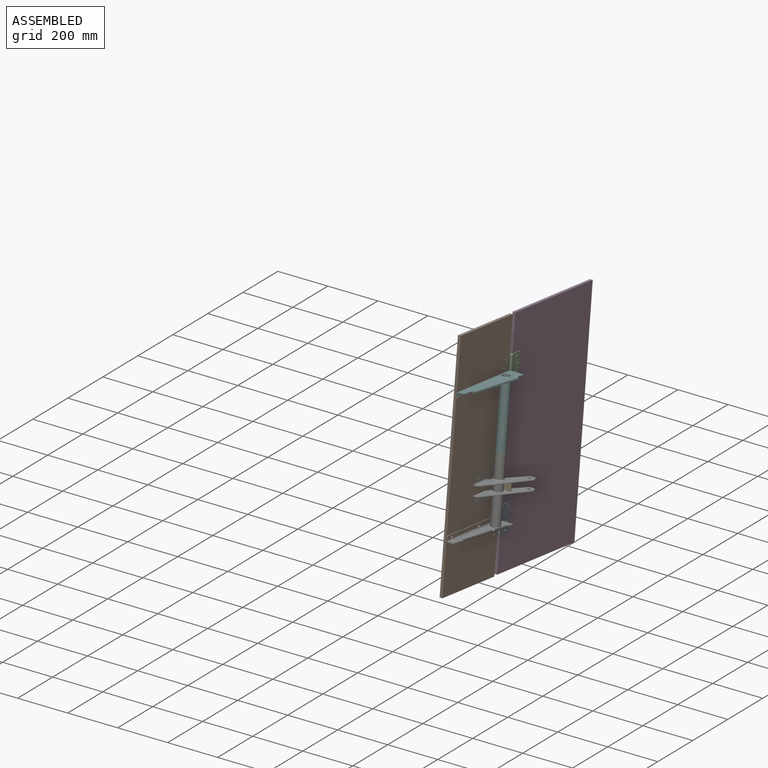
[diagram: assembled view]
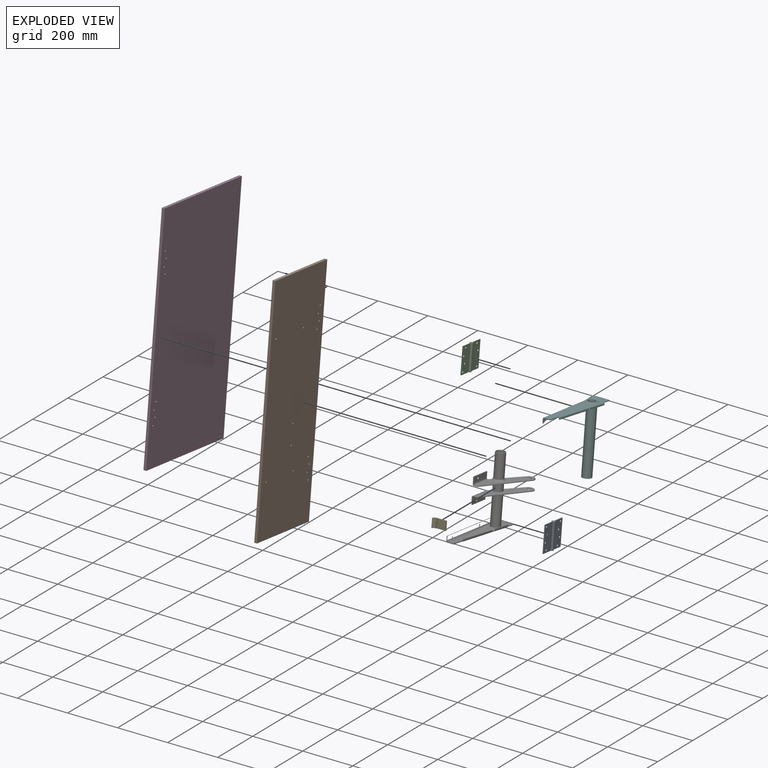
[diagram: exploded view]
GUIDED TOUR — MATED ASSEMBLY WITH SUBASSEMBLIES (Onshape document 43f97b9f7a8c3bc5046a47ca, AutoMate assembly 43f97b9f7a8c3bc5046a47ca_c467d1820c0d632e73bb7d85_4839b0d3525e1f33f01944b1_default)

This assembly has 11 component occurrences arranged in 7 top-level units: 5 individual components plus 2 subassemblies (S0, S1). The tour has two levels: first the top level, where each subassembly is treated as one rigid unit; then each subassembly is toured internally in its own section (nesting deeper than one subassembly level is flattened into its subassembly's section).

Components are labeled P0..P10 across the whole record; subassembly units are labeled S0..S1. A mate is a constraint between two units; its type names the relative motion it leaves free:
  CYLINDRICAL — leaves both rotation about and translation along the listed axis free,
  PARALLEL — keeps the two listed directions parallel.
Axis/direction vectors are unit vectors and 'through' points are millimeter coordinates, both in the assembly's world frame.

TOP-LEVEL MATES (between units; each subassembly's internal mates are listed in its own section)
  1. CYLINDRICAL "Cylindrical 9": P7 <-> S1, axis (-1.000, 0.000, 0.000) through (-171.86, -400.85, 621.26) mm
  2. CYLINDRICAL "Cylindrical 1": S0 <-> P3, axis (-1.000, 0.000, 0.000) through (-174.66, -400.32, 63.24) mm
  3. CYLINDRICAL "Cylindrical 3": S1 <-> P3, axis (-1.000, 0.000, 0.000) through (-174.66, -331.63, 585.66) mm
  4. CYLINDRICAL "Cylindrical 11": P10 <-> S0, axis (-1.000, 0.000, 0.000) through (-171.86, -458.17, 125.63) mm
  5. CYLINDRICAL "Cylindrical 2": S0 <-> P3, axis (-1.000, 0.000, 0.000) through (-174.66, -382.64, 144.48) mm
  6. CYLINDRICAL "Cylindrical 12": P7 <-> P10, axis (0.000, -0.115, -0.993) through (-143.29, -464.18, 377.68) mm
  7. CYLINDRICAL "Cylindrical 8": S0 <-> P1, axis (-1.000, 0.000, 0.000) through (-174.66, -463.20, 153.75) mm
  8. CYLINDRICAL "Cylindrical 5": S1 <-> P1, axis (-1.000, 0.000, 0.000) through (-174.66, -394.49, 676.27) mm
  9. CYLINDRICAL "Cylindrical 6": P1 <-> S1, axis (1.000, 0.000, 0.000) through (-171.86, -412.17, 595.03) mm
  10. CYLINDRICAL "Cylindrical 4": P3 <-> S1, axis (1.000, 0.000, 0.000) through (-174.66, -330.30, 668.80) mm
  11. CYLINDRICAL "Cylindrical 7": S0 <-> P1, axis (-1.000, 0.000, 0.000) through (-174.66, -464.53, 70.61) mm
  12. CYLINDRICAL "Cylindrical 10": P7 <-> P1, axis (-1.000, 0.000, 0.000) through (-171.87, -646.86, 649.70) mm
  13. PARALLEL "Parallel 1": P10 <-> P5, direction (0.000, 0.115, 0.993) through (-120.14, -474.88, 242.62) mm

TOP-LEVEL ASSEMBLY ORDER
  1. P10 — the base component [order verified]
  2. P5 [order verified]
  3. S0 [order verified]
  4. P7 [order verified]
  5. S1 [order verified]
  6. P1 [order verified]
  7. P3 [order verified]
Order-tag legend:
  [order verified] — this step's position reverses a verified removal order: the component was checked to insert without passing through the ones already placed.

Of the 11 component occurrences, 6 carry the full construction recipe — the FeatureScript program that regenerates the part's solid from scratch; the rest are supplied as boundary geometry only. Each toured unit is shown spotlighted twice — assembled, then exploded with a leader line back to its socket (green = recipe-attached component, orange = geometry-only, blue = subassembly unit; the rest desaturated gray).
NOTE — document 2 of 2 of this assembly tour. The two overview renders and the header above are repeated from document 1; the component sections below continue where the previous document stopped.
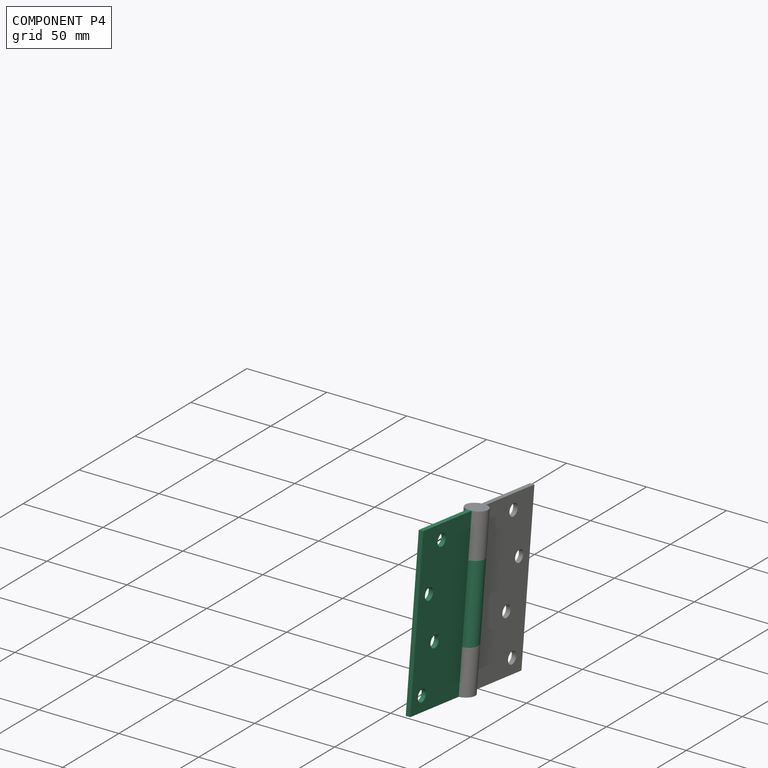
[diagram: component P4 — assembled]
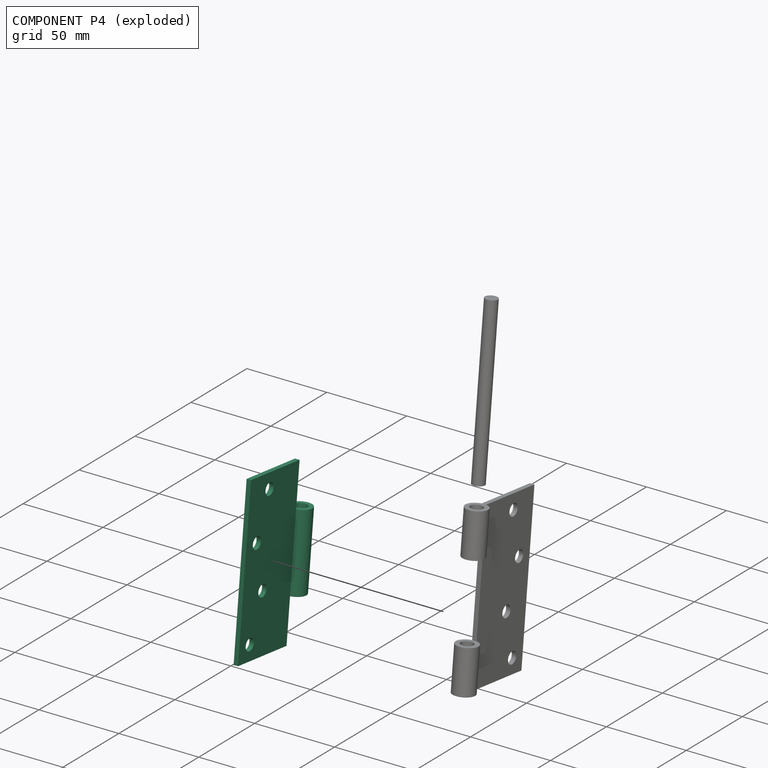
[diagram: component P4 — exploded]
COMPONENT P4 — recipe-attached (CADFS 00647141, mesh-verified: the recipe's output STEP matches this component's geometry to below the mesh-comparison resolution (tessellation chordal tolerance ~0.175 mm)).
Held by: CYLINDRICAL mate "Cylindrical 1" to P8; PARALLEL mate "Parallel 2" to P8.
Construction recipe (FeatureScript — the CAD program that rebuilds this solid; sketch coordinates are in the units given by the * unit suffixes, e.g. mm):

FeatureScript 1511;
import(path : "onshape/std/geometry.fs", version : "1511.0");
import(path : "onshape/std/common.fs", version : "1511.0");
const mm = millimeter;
const VERTEX = EntityType.VERTEX;
const EDGE = EntityType.EDGE;
const FACE = EntityType.FACE;
const BODY = EntityType.BODY;
function v(x, y){return vector(x, y);}
function OD(order){return orderDisambiguation(order);}
function OSD(set){return originalSetDisambiguation(set);}
function TD(topology){return topologyDisambiguation(topology);}
function TDD(query){return trueDependencyDisambiguation(query);}
function sQuery(a, b, c) {return sketchEntityQuery(a, b, c);}

annotation { "Feature Type Name" : "Feature", "Feature Type Description" : "" }
export const myFeature = defineFeature(function(context is Context, id is Id, definition is map)
    precondition{}
    {
        {
            var Q0;
            Q0=qCreatedBy(makeId("Top.planeOp"),FACE);
            var sketch = newSketch(context, id + "F0", { "sketchPlane" : qUnion([Q0])});
            skLineSegment(sketch, "E0.bottom", {"start": v(-50.7, 21.8) * mm, "end": v(50.71, 21.8) * mm});
            skLineSegment(sketch, "E0.top", {"start": v(-50.7, -21.8) * mm, "end": v(50.71, -21.8) * mm});
            skLineSegment(sketch, "E0.left", {"start": v(-50.7, 21.8) * mm, "end": v(-50.7, -21.8) * mm});
            skLineSegment(sketch, "E0.right", {"start": v(50.71, 21.8) * mm, "end": v(50.71, -21.8) * mm});
            skSolve(sketch);
        }
        {
            var Q0;
            Q0 = qSketchRegion(id + "F0", true);
            extrude(context, id + "F1", {"entities" : qUnion([Q0]), "depth" : 2.8 * mm, "offsetDistance" : 25.4 * mm});
        }
        {
            var Q0;
            Q0=qCreatedBy(makeId("Right.planeOp"),FACE);
            var sketch = newSketch(context, id + "F2", { "sketchPlane" : qUnion([Q0])});
            skCircle(sketch, "E1", {"center": v(-28.3, 1.4) * mm, "radius": 6.65 * mm});
            skPoint(sketch, "E2", {"position": v(-21.8, 1.4) * mm});
            skCircle(sketch, "E3.0", {"center": v(-28.3, 1.4) * mm, "radius": 3.86 * mm});
            skSolve(sketch);
        }
        {
            var Q0;
            Q0 = qSketchRegion(id + "F2", true);
            extrude(context, id + "F3", {"entities" : qUnion([Q0]), "operationType" : NewBodyOperationType.ADD, "depth" : 23.72 * mm, "offsetDistance" : 25.4 * mm, "hasSecondDirection" : true, "secondDirectionOppositeDirection" : true, "secondDirectionDepth" : 23.72 * mm});
        }
        {
            var Q0;
            Q0=makeQuery(id+"F1.opExtrude","CAP_FACE",FACE,{"disambiguationData":[OSD([sQuery(id+"F0.wireOp",EDGE,"E0.bottom"),sQuery(id+"F0.wireOp",EDGE,"E0.top"),sQuery(id+"F0.wireOp",EDGE,"E0.left"),sQuery(id+"F0.wireOp",EDGE,"E0.right")])],"isStart":false});
            var sketch = newSketch(context, id + "F4", { "sketchPlane" : qUnion([Q0])});
            skPoint(sketch, "E4", {"position": v(41.38, 12.34) * mm});
            skPoint(sketch, "E5", {"position": v(-14, 12.34) * mm});
            skPoint(sketch, "E6", {"position": v(14.02, 4.1) * mm});
            skPoint(sketch, "E7", {"position": v(-41.36, 4.1) * mm});
            skSolve(sketch);
        }
        {
            var Q0;
            Q0=sQuery(id+"F4.wireOp",VERTEX,"E6");
            var Q1;
            Q1=sQuery(id+"F4.wireOp",VERTEX,"E5");
            var Q2;
            Q2=sQuery(id+"F4.wireOp",VERTEX,"E7");
            var Q3;
            Q3=sQuery(id+"F4.wireOp",VERTEX,"E4");
            var Q4;
            Q4=makeQuery(id+"F1.opExtrude","SWEPT_BODY",BODY,{"disambiguationData":[OSD([sQuery(id+"F0.wireOp",EDGE,"E0.bottom"),sQuery(id+"F0.wireOp",EDGE,"E0.top"),sQuery(id+"F0.wireOp",EDGE,"E0.left"),sQuery(id+"F0.wireOp",EDGE,"E0.right")])]});
            hole(context, id + "F5", {"style" : HoleStyle.SIMPLE, "endStyle" : HoleEndStyle.BLIND, "holeDiameter" : 7.35 * mm, "majorDiameter" : 6.35 * mm, "holeDepth" : 12.7 * mm, "isTappedThrough" : true, "tappedDepth" : 12.7 * mm, "tapClearance" : 3, "locations" : qUnion([Q0, Q1, Q2, Q3]), "scope" : qUnion([Q4])});
        }
    });
PROVENANCE & LICENSES
Assembly (occurrences, transforms, mates, per-part STEP geometry): AutoMate dataset, Zenodo record 7776208, CC0.
Construction recipes: CADFS (HuggingFace VladPyatov/CADFS, CC-BY-4.0, layered over the ABC dataset), FeatureScript reconstruction programs keyed by ABC model id.
Join: ABC meta listings map ABC model id -> Onshape documentId; within a shared document, parts are matched by geometric signature (bounding-box dims + volume at 0.1% relative tolerance, exact B-rep face/solid counts).
Verification: 6 of this assembly's 11 components carry a recipe attachment, and every attachment is mesh-verified: the CADFS STEP and the AutoMate member STEP were compared as meshes in their shared local frame (symmetric sampled-point-to-mesh distance); worst across the 6 attachments: below the mesh-comparison resolution (tessellation chordal tolerance ~1.53 mm) on a 1017 mm part.
Renders: orthographic iso camera (az 35 / el 25); the floor grid conveys scale (grid pitch printed in each image; no ruler). In the exploded view each component is displaced by its stored offset vector: the offsets alone carry the explosion direction (mate normal/axis signs are not orientation cues and do not encode it), and separation distances are assigned per mate-chain, not proportionally to assembly-order depth.
